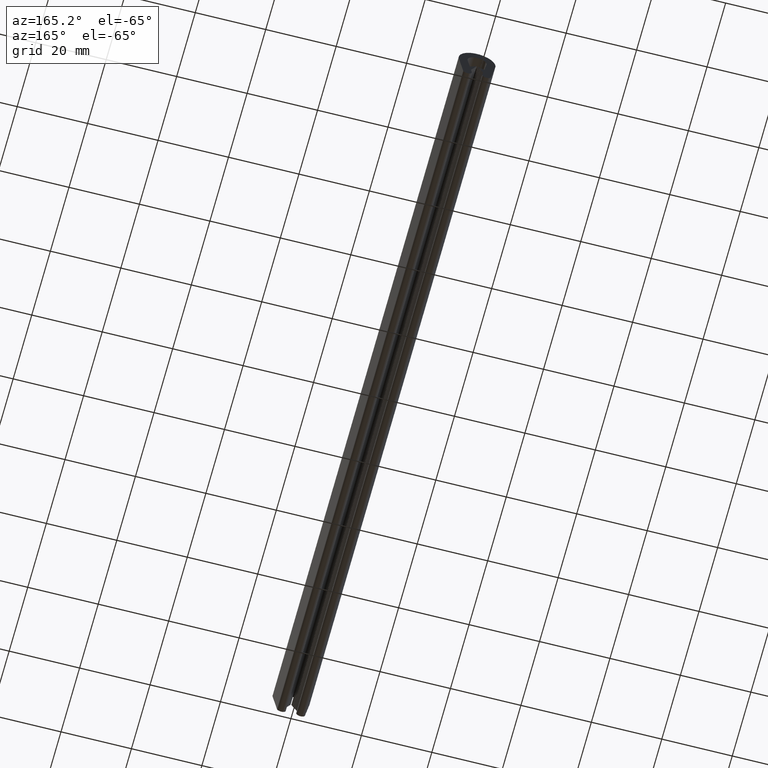
[diagram: clean part render]
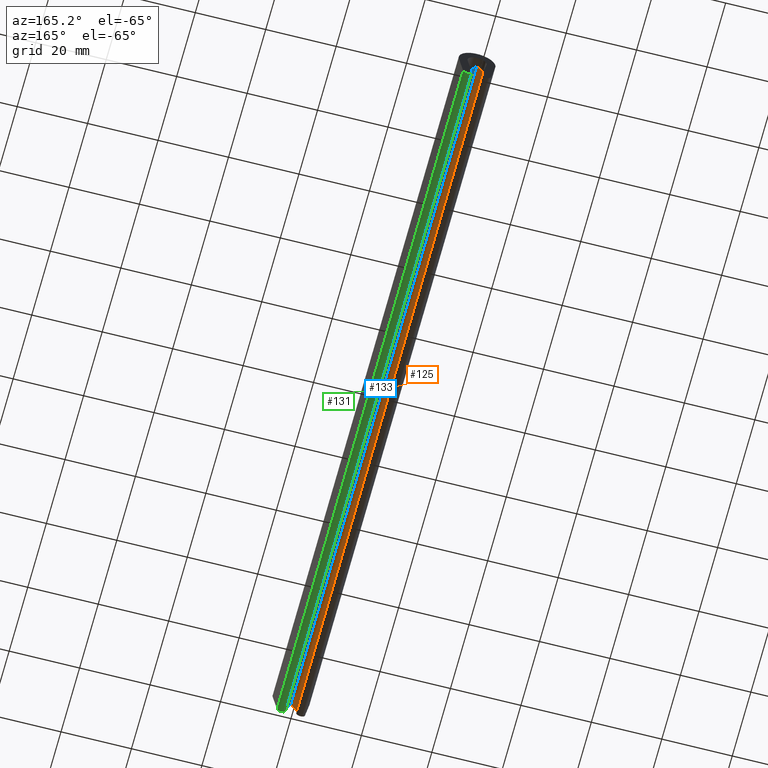
[diagram: same view with three faces highlighted in distinct colors, each labeled with its STEP entity id]
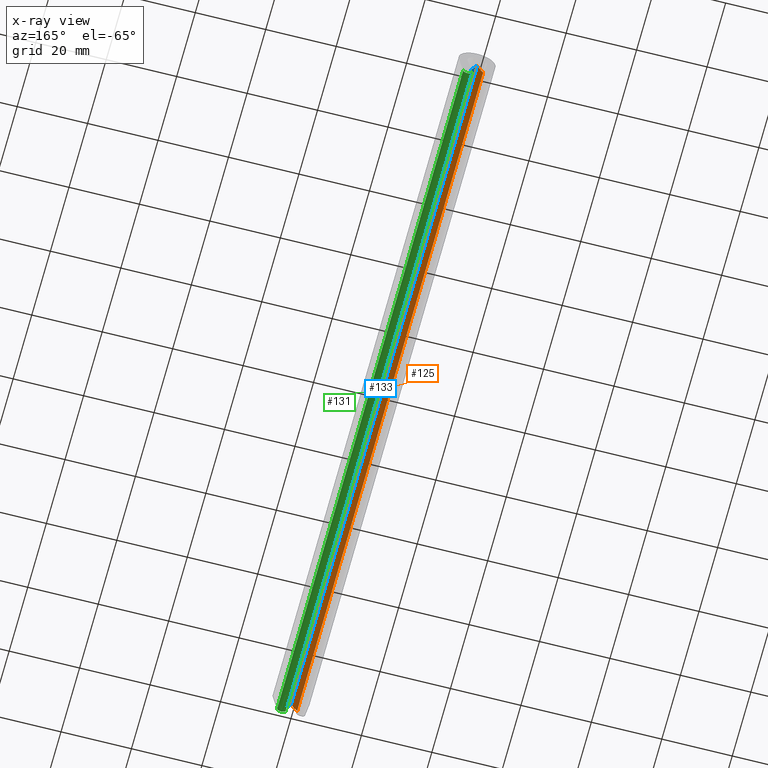
[diagram: x-ray of the same camera — body ghosted, the three highlighted faces saturated]
A machine part, auxiliary view with three faces highlighted in distinct colors.
The next image is the same camera in x-ray (body ghosted, the three faces saturated) — at least one of them is partly hidden behind the body in this view.
Their STEP definitions:

[orange] entity #125 — the highlighted planar face has unit normal (0.8927, 0, -0.4507).
#125=ADVANCED_FACE('',(#279),#278,.T.);
#278=PLANE('',#558);
#279=FACE_OUTER_BOUND('',#559,.T.);
#555=CARTESIAN_POINT('',(6.15715997658E-02,-1.00000000000E+01,-7.73000000000E+00));
#556=DIRECTION('',(8.92666671058E-01,0.00000000000E+00,-4.50717444063E-01));
#557=DIRECTION('',(-4.50717444063E-01,0.00000000000E+00,-8.92666671058E-01));
#558=AXIS2_PLACEMENT_3D('',#555,#556,#557);
#559=EDGE_LOOP('',(#748,#749,#750,#751));
#748=ORIENTED_EDGE('',*,*,#850,.F.);
#749=ORIENTED_EDGE('',*,*,#896,.F.);
#750=ORIENTED_EDGE('',*,*,#882,.T.);
#751=ORIENTED_EDGE('',*,*,#895,.T.);
#850=EDGE_CURVE('',#994,#1001,#1002,.T.);
#882=EDGE_CURVE('',#1217,#1210,#1218,.T.);
#895=EDGE_CURVE('',#1210,#1001,#1304,.T.);
#896=EDGE_CURVE('',#1217,#994,#1310,.T.);
#994=VERTEX_POINT('',#1570);
#1001=VERTEX_POINT('',#1574);
#1002=LINE('',#1575,#1576);
#1210=VERTEX_POINT('',#1696);
#1217=VERTEX_POINT('',#1700);
#1218=LINE('',#1701,#1702);
#1304=LINE('',#1751,#1752);
#1310=LINE('',#1754,#1755);
#1570=CARTESIAN_POINT('',(-1.71571599766E+00,0.00000000000E+00,-1.12500000000E+01));
#1574=CARTESIAN_POINT('',(-9.99999999999E-02,0.00000000000E+00,-8.05000000000E+00));
#1575=CARTESIAN_POINT('',(-1.71571599766E+00,0.00000000000E+00,-1.12500000000E+01));
#1576=VECTOR('',#1577,3.58476473218E+00);
#1577=DIRECTION('',(4.50717444063E-01,0.00000000000E+00,8.92666671058E-01));
#1696=CARTESIAN_POINT('',(-9.99999999999E-02,2.00000000000E+02,-8.05000000000E+00));
#1700=CARTESIAN_POINT('',(-1.71571599766E+00,2.00000000000E+02,-1.12500000000E+01));
#1701=CARTESIAN_POINT('',(-1.71571599766E+00,2.00000000000E+02,-1.12500000000E+01));
#1702=VECTOR('',#1703,3.58476473218E+00);
#1703=DIRECTION('',(4.50717444063E-01,0.00000000000E+00,8.92666671058E-01));
#1751=CARTESIAN_POINT('',(-9.99999999999E-02,2.00000000000E+02,-8.05000000000E+00));
#1752=VECTOR('',#1753,2.00000000000E+02);
#1753=DIRECTION('',(0.00000000000E+00,-1.00000000000E+00,0.00000000000E+00));
#1754=CARTESIAN_POINT('',(-1.71571599766E+00,2.00000000000E+02,-1.12500000000E+01));
#1755=VECTOR('',#1756,2.00000000000E+02);
#1756=DIRECTION('',(0.00000000000E+00,-1.00000000000E+00,0.00000000000E+00));

[blue] entity #133 — the highlighted planar face has unit normal (-0.8927, 0, -0.4507).
#133=ADVANCED_FACE('',(#359),#358,.T.);
#358=PLANE('',#598);
#359=FACE_OUTER_BOUND('',#599,.T.);
#595=CARTESIAN_POINT('',(1.87728759742E+00,-1.00000000000E+01,-1.15700000000E+01));
#596=DIRECTION('',(-8.92666671058E-01,0.00000000000E+00,-4.50717444063E-01));
#597=DIRECTION('',(-4.50717444063E-01,0.00000000000E+00,8.92666671058E-01));
#598=AXIS2_PLACEMENT_3D('',#595,#596,#597);
#599=EDGE_LOOP('',(#780,#781,#782,#783));
#780=ORIENTED_EDGE('',*,*,#842,.F.);
#781=ORIENTED_EDGE('',*,*,#904,.F.);
#782=ORIENTED_EDGE('',*,*,#890,.T.);
#783=ORIENTED_EDGE('',*,*,#903,.T.);
#842=EDGE_CURVE('',#938,#945,#946,.T.);
#890=EDGE_CURVE('',#1273,#1266,#1274,.T.);
#903=EDGE_CURVE('',#1266,#945,#1352,.T.);
#904=EDGE_CURVE('',#1273,#938,#1358,.T.);
#938=VERTEX_POINT('',#1535);
#945=VERTEX_POINT('',#1539);
#946=LINE('',#1540,#1541);
#1266=VERTEX_POINT('',#1731);
#1273=VERTEX_POINT('',#1735);
#1274=LINE('',#1736,#1737);
#1352=LINE('',#1775,#1776);
#1358=LINE('',#1778,#1779);
#1535=CARTESIAN_POINT('',(1.00000000000E-01,0.00000000000E+00,-8.05000000000E+00));
#1539=CARTESIAN_POINT('',(1.71571599766E+00,0.00000000000E+00,-1.12500000000E+01));
#1540=CARTESIAN_POINT('',(1.00000000000E-01,0.00000000000E+00,-8.05000000000E+00));
#1541=VECTOR('',#1542,3.58476473218E+00);
#1542=DIRECTION('',(4.50717444063E-01,0.00000000000E+00,-8.92666671058E-01));
#1731=CARTESIAN_POINT('',(1.71571599766E+00,2.00000000000E+02,-1.12500000000E+01));
#1735=CARTESIAN_POINT('',(1.00000000000E-01,2.00000000000E+02,-8.05000000000E+00));
#1736=CARTESIAN_POINT('',(1.00000000000E-01,2.00000000000E+02,-8.05000000000E+00));
#1737=VECTOR('',#1738,3.58476473218E+00);
#1738=DIRECTION('',(4.50717444063E-01,0.00000000000E+00,-8.92666671058E-01));
#1775=CARTESIAN_POINT('',(1.71571599766E+00,2.00000000000E+02,-1.12500000000E+01));
#1776=VECTOR('',#1777,2.00000000000E+02);
#1777=DIRECTION('',(0.00000000000E+00,-1.00000000000E+00,0.00000000000E+00));
#1778=CARTESIAN_POINT('',(1.00000000000E-01,2.00000000000E+02,-8.05000000000E+00));
#1779=VECTOR('',#1780,2.00000000000E+02);
#1780=DIRECTION('',(0.00000000000E+00,-1.00000000000E+00,0.00000000000E+00));

[green] entity #131 — the highlighted cylindrical surface (edge-blend (fillet) strip) has radius 1.25 mm, axis along (-0, -1, -0).
#131=ADVANCED_FACE('',(#339),#338,.T.);
#338=CYLINDRICAL_SURFACE('',#588,1.25000000000E+00);
#339=FACE_OUTER_BOUND('',#589,.T.);
#585=CARTESIAN_POINT('',(2.73299865386E+00,-5.12500000000E+00,-1.27500000000E+01));
#586=DIRECTION('',(-2.55486014182E-15,-1.00000000000E+00,-2.09266848912E-14));
#587=DIRECTION('',(1.72970575518E-01,-2.10531724361E-14,9.84926992221E-01));
#588=AXIS2_PLACEMENT_3D('',#585,#586,#587);
#589=EDGE_LOOP('',(#772,#773,#774,#775));
#772=ORIENTED_EDGE('',*,*,#844,.F.);
#773=ORIENTED_EDGE('',*,*,#902,.F.);
#774=ORIENTED_EDGE('',*,*,#888,.T.);
#775=ORIENTED_EDGE('',*,*,#901,.T.);
#844=EDGE_CURVE('',#952,#959,#960,.T.);
#888=EDGE_CURVE('',#1259,#1252,#1260,.T.);
#901=EDGE_CURVE('',#1252,#959,#1340,.T.);
#902=EDGE_CURVE('',#1259,#952,#1346,.T.);
#952=VERTEX_POINT('',#1543);
#959=VERTEX_POINT('',#1547);
#960=CIRCLE('',#1551,1.25000000000E+00);
#1252=VERTEX_POINT('',#1722);
#1259=VERTEX_POINT('',#1726);
#1260=CIRCLE('',#1730,1.25000000000E+00);
#1340=LINE('',#1769,#1770);
#1346=LINE('',#1772,#1773);
#1543=CARTESIAN_POINT('',(1.50000000000E+00,0.00000000000E+00,-1.25445387638E+01));
#1547=CARTESIAN_POINT('',(3.96599730772E+00,0.00000000000E+00,-1.29554612362E+01));
#1548=CARTESIAN_POINT('',(2.73299865386E+00,0.00000000000E+00,-1.27500000000E+01));
#1549=DIRECTION('',(-0.00000000000E+00,-1.00000000000E+00,0.00000000000E+00));
#1550=DIRECTION('',(-9.86398923087E-01,0.00000000000E+00,1.64368988966E-01));
#1551=AXIS2_PLACEMENT_3D('',#1548,#1549,#1550);
#1722=CARTESIAN_POINT('',(3.96599730772E+00,2.00000000000E+02,-1.29554612362E+01));
#1726=CARTESIAN_POINT('',(1.50000000000E+00,2.00000000000E+02,-1.25445387638E+01));
#1727=CARTESIAN_POINT('',(2.73299865386E+00,2.00000000000E+02,-1.27500000000E+01));
#1728=DIRECTION('',(3.73731811500E-15,-1.00000000000E+00,2.24281148595E-14));
#1729=DIRECTION('',(-9.86398923087E-01,2.78443247640E-30,1.64368988966E-01));
#1730=AXIS2_PLACEMENT_3D('',#1727,#1728,#1729);
#1769=CARTESIAN_POINT('',(3.96599730772E+00,2.00000000000E+02,-1.29554612362E+01));
#1770=VECTOR('',#1771,2.00000000000E+02);
#1771=DIRECTION('',(0.00000000000E+00,-1.00000000000E+00,0.00000000000E+00));
#1772=CARTESIAN_POINT('',(1.50000000000E+00,2.00000000000E+02,-1.25445387638E+01));
#1773=VECTOR('',#1774,2.00000000000E+02);
#1774=DIRECTION('',(0.00000000000E+00,-1.00000000000E+00,0.00000000000E+00));